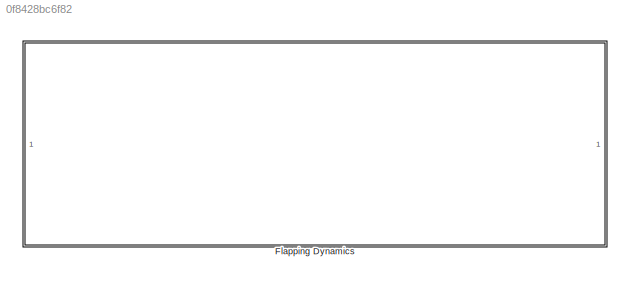
MODEL slx_0f8428bc6f82
KIND library
CONFIG AbsTol = auto
CONFIG EnableMultiTasking = off
CONFIG FixedStep = auto
CONFIG MaxStep = auto
CONFIG MinStep = auto
CONFIG RelTol = 1e-3
CONFIG SampleTimeConstraint = Unconstrained
CONFIG SolverName = VariableStepAuto
CONFIG StartTime = 0.0
CONFIG StopTime = 10.0
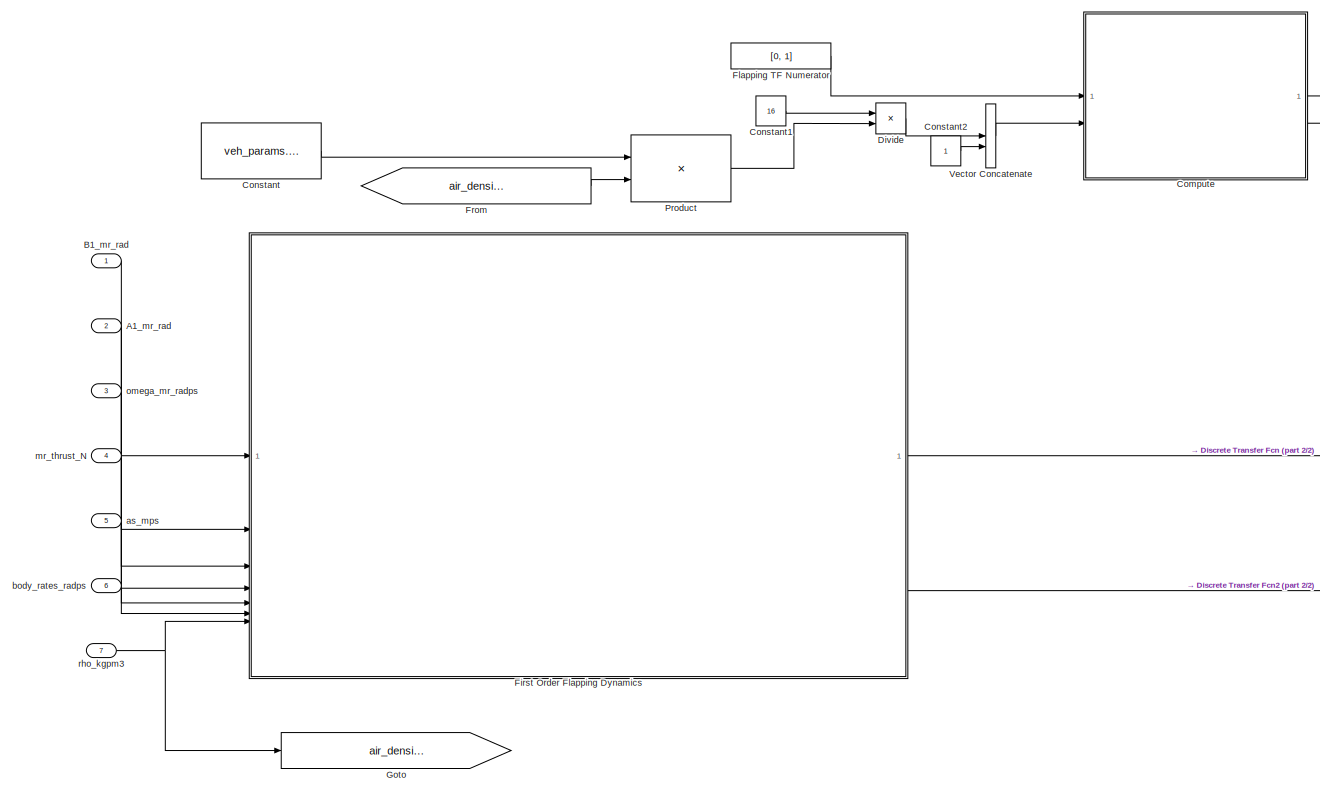
[diagram: Flapping Dynamics - part 1/2, center side, full height]
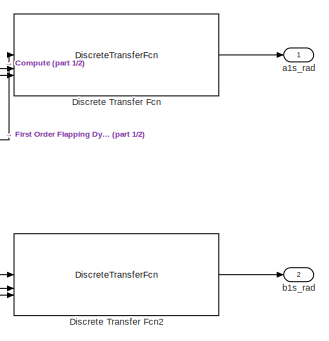
[diagram: Flapping Dynamics - part 2/2, middle right region]
BLOCK [SubSystem] Flapping Dynamics
BLOCK [Inport] Flapping Dynamics/A1_mr_rad
  Port = 2
BLOCK [Inport] Flapping Dynamics/B1_mr_rad
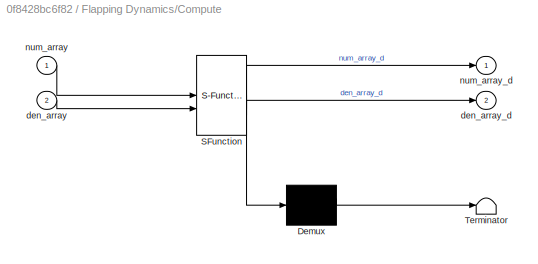
BLOCK [SubSystem] Flapping Dynamics/Compute
  ErrorFcn = Stateflow.Translate.translate
  LibrarySourceBlock = simulink/User-Defined\nFunctions/MATLAB Function
  PermitHierarchicalResolution = ExplicitOnly
  SFBlockType = MATLAB Function
  TreatAsAtomicUnit = on
BLOCK [Demux] Flapping Dynamics/Compute/ Demux 
  Outputs = 1
BLOCK [S-Function] Flapping Dynamics/Compute/ SFunction 
  EnableBusSupport = off
  FunctionName = sf_sfun
  Parameters = sample_time_s
  PortCounts = [2 3]
  SFcnIsStateOwnerBlock = off
  SFunctionDeploymentMode = off
  Tag = Stateflow S-Function 1
BLOCK [Terminator] Flapping Dynamics/Compute/ Terminator 
BLOCK [Inport] Flapping Dynamics/Compute/den_array
  Port = 2
BLOCK [Outport] Flapping Dynamics/Compute/den_array_d
  Port = 2
BLOCK [Inport] Flapping Dynamics/Compute/num_array
BLOCK [Outport] Flapping Dynamics/Compute/num_array_d
BLOCK [Constant] Flapping Dynamics/Constant
  SampleTime = plant_sample_time_s
  Value = veh_params.main_rotor.gamma_mr
BLOCK [Constant] Flapping Dynamics/Constant1
  SampleTime = plant_sample_time_s
  Value = 16
BLOCK [Constant] Flapping Dynamics/Constant2
BLOCK [DiscreteTransferFcn] Flapping Dynamics/Discrete Transfer Fcn
  DenominatorSource = Input port
  InputPortMap = u0,p1,p3
  NumeratorSource = Input port
  SampleTime = plant_sample_time_s
  a0EqualsOne = on
BLOCK [DiscreteTransferFcn] Flapping Dynamics/Discrete Transfer Fcn2
  DenominatorSource = Input port
  InputPortMap = u0,p1,p3
  NumeratorSource = Input port
  SampleTime = plant_sample_time_s
  a0EqualsOne = on
BLOCK [Product] Flapping Dynamics/Divide
  Inputs = */
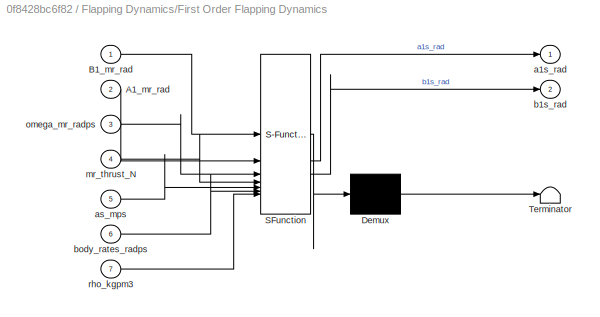
BLOCK [SubSystem] Flapping Dynamics/First Order Flapping Dynamics
  ErrorFcn = Stateflow.Translate.translate
  LibrarySourceBlock = simulink/User-Defined\nFunctions/MATLAB Function
  PermitHierarchicalResolution = ExplicitOnly
  SFBlockType = MATLAB Function
  TreatAsAtomicUnit = on
BLOCK [Demux] Flapping Dynamics/First Order Flapping Dynamics/ Demux 
  Outputs = 1
BLOCK [S-Function] Flapping Dynamics/First Order Flapping Dynamics/ SFunction 
  EnableBusSupport = off
  FunctionName = sf_sfun
  Parameters = params
  PortCounts = [7 3]
  SFcnIsStateOwnerBlock = off
  SFunctionDeploymentMode = off
  Tag = Stateflow S-Function 2
BLOCK [Terminator] Flapping Dynamics/First Order Flapping Dynamics/ Terminator 
BLOCK [Inport] Flapping Dynamics/First Order Flapping Dynamics/A1_mr_rad
  Port = 2
BLOCK [Inport] Flapping Dynamics/First Order Flapping Dynamics/B1_mr_rad
BLOCK [Outport] Flapping Dynamics/First Order Flapping Dynamics/a1s_rad
BLOCK [Inport] Flapping Dynamics/First Order Flapping Dynamics/as_mps
  Port = 5
BLOCK [Outport] Flapping Dynamics/First Order Flapping Dynamics/b1s_rad
  Port = 2
BLOCK [Inport] Flapping Dynamics/First Order Flapping Dynamics/body_rates_radps
  Port = 6
BLOCK [Inport] Flapping Dynamics/First Order Flapping Dynamics/mr_thrust_N
  Port = 4
BLOCK [Inport] Flapping Dynamics/First Order Flapping Dynamics/omega_mr_radps
  Port = 3
BLOCK [Inport] Flapping Dynamics/First Order Flapping Dynamics/rho_kgpm3
  Port = 7
BLOCK [Constant] Flapping Dynamics/Flapping TF Numerator
  SampleTime = plant_sample_time_s
  Value = [0, 1]
BLOCK [From] Flapping Dynamics/From
  GotoTag = air_density_kgpm3
BLOCK [Goto] Flapping Dynamics/Goto
  GotoTag = air_density_kgpm3
BLOCK [Product] Flapping Dynamics/Product
BLOCK [Concatenate] Flapping Dynamics/Vector Concatenate
BLOCK [Outport] Flapping Dynamics/a1s_rad
BLOCK [Inport] Flapping Dynamics/as_mps
  Port = 5
BLOCK [Outport] Flapping Dynamics/b1s_rad
  Port = 2
BLOCK [Inport] Flapping Dynamics/body_rates_radps
  Port = 6
BLOCK [Inport] Flapping Dynamics/mr_thrust_N
  Port = 4
BLOCK [Inport] Flapping Dynamics/omega_mr_radps
  Port = 3
BLOCK [Inport] Flapping Dynamics/rho_kgpm3
  Port = 7
LINE Flapping Dynamics/A1_mr_rad:1 -> Flapping Dynamics/First Order Flapping Dynamics:2
LINE Flapping Dynamics/B1_mr_rad:1 -> Flapping Dynamics/First Order Flapping Dynamics:1
NET Flapping Dynamics/Compute:1 -> Flapping Dynamics/Discrete Transfer Fcn2:2, Flapping Dynamics/Discrete Transfer Fcn:2
NET Flapping Dynamics/Compute:2 -> Flapping Dynamics/Discrete Transfer Fcn2:3, Flapping Dynamics/Discrete Transfer Fcn:3
LINE Flapping Dynamics/Constant1:1 -> Flapping Dynamics/Divide:1
LINE Flapping Dynamics/Constant2:1 -> Flapping Dynamics/Vector Concatenate:2
LINE Flapping Dynamics/Constant:1 -> Flapping Dynamics/Product:1
LINE Flapping Dynamics/Discrete Transfer Fcn2:1 -> Flapping Dynamics/b1s_rad:1
LINE Flapping Dynamics/Discrete Transfer Fcn:1 -> Flapping Dynamics/a1s_rad:1
LINE Flapping Dynamics/Divide:1 -> Flapping Dynamics/Vector Concatenate:1
LINE Flapping Dynamics/First Order Flapping Dynamics:1 -> Flapping Dynamics/Discrete Transfer Fcn:1
LINE Flapping Dynamics/First Order Flapping Dynamics:2 -> Flapping Dynamics/Discrete Transfer Fcn2:1
LINE Flapping Dynamics/Flapping TF Numerator:1 -> Flapping Dynamics/Compute:1
LINE Flapping Dynamics/From:1 -> Flapping Dynamics/Product:2
LINE Flapping Dynamics/Product:1 -> Flapping Dynamics/Divide:2
LINE Flapping Dynamics/Vector Concatenate:1 -> Flapping Dynamics/Compute:2
LINE Flapping Dynamics/as_mps:1 -> Flapping Dynamics/First Order Flapping Dynamics:5
LINE Flapping Dynamics/body_rates_radps:1 -> Flapping Dynamics/First Order Flapping Dynamics:6
LINE Flapping Dynamics/mr_thrust_N:1 -> Flapping Dynamics/First Order Flapping Dynamics:4
LINE Flapping Dynamics/omega_mr_radps:1 -> Flapping Dynamics/First Order Flapping Dynamics:3
NET Flapping Dynamics/rho_kgpm3:1 -> Flapping Dynamics/First Order Flapping Dynamics:7, Flapping Dynamics/Goto:1
note: NET lines group one-source signal fan-out (src -> all destinations, sorted); 1:1 wires keep LINE
CHART Flapping Dynamics/Compute states=1 transitions=1
  STATE_LABEL 'eML_blk_kernel()'
  STATE_LABEL 'SCRIPT:\nfunction [num_array_d, den_array_d] = compute_discrete_tf(num_array, den_array, sample_time_s)\n%COMPUTE_DISCRETE_TF For a given numerator and denominator of the\n% first order continuous transfer function this function computes the numerator and\n% denominator of the corresponding discrete transfer function using Tustin\n% transformation\n%\n%Inputs:\n%num_array              : Numerator of the T...<+398ch>'
CHART Flapping Dynamics/First Order Flapping Dynamics states=1 transitions=1
  STATE_LABEL 'eML_blk_kernel()'
  STATE_LABEL "SCRIPT:\nfunction [a1s_rad, b1s_rad] = first_order_flapping_mr(B1_mr_rad, A1_mr_rad, omega_mr_radps, ...\n                       mr_thrust_N, as_mps, body_rates_radps, rho_kgpm3, params)\n%FIRST_ORDER_FLAPPING_MR implements first order flapping dynamics\n%for the main rotor. A steady state assumption is used, which assumes\n%that tip path plane (TPP) changes it's orientation instantaneously\n%(transient...<+1022ch>"
CHART  states=0 transitions=0
CHART  states=0 transitions=0
